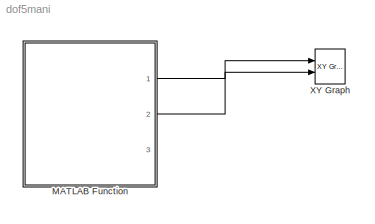
MODEL dof5mani
KIND model
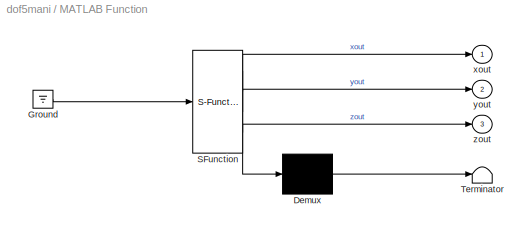
BLOCK [SubSystem] MATLAB Function
  ErrorFcn = Stateflow.Translate.translate
  FunctionWithSeparateData = off
  MaskDescription = Embedded MATLAB block
  MaskDisplay = bgColor = Simulink.Root.ColorString2Rgb(get_param(gcbh, 'BackgroundColor')); image(imread('private/eml_membrane_16.png','png','BackgroundColor',bgColor(1:3)),'center'); disp([10 10 'dof5']);
  MaskHideContents = off
  MaskIconFrame = on
  MaskIconOpaque = off
  MaskIconRotate = none
  MaskIconUnits = normalized
  MaskPortRotate = default
  MaskSelfModifiable = on
  MaskType = Stateflow
  MinAlgLoopOccurrences = off
  Opaque = off
  PermitHierarchicalResolution = ExplicitOnly
  Ports = [0, 3]
  PropExecContextOutsideSubsystem = off
  RTWSystemCode = Auto
  RequestExecContextInheritance = off
  SFBlockType = MATLAB Function
  SID = 1
  TreatAsAtomicUnit = on
BLOCK [Demux] MATLAB Function/ Demux 
  Outputs = 1
  Ports = [1, 1]
  SID = 1::20
BLOCK [Ground] MATLAB Function/ Ground 
  SID = 1::27
BLOCK [S-Function] MATLAB Function/ SFunction 
  EnableBusSupport = on
  FunctionName = sf_sfun
  PortCounts = [1 4]
  Ports = [1, 4]
  SID = 1::19
  Tag = Stateflow S-Function dof5mani 2
BLOCK [Terminator] MATLAB Function/ Terminator 
  SID = 1::22
BLOCK [Outport] MATLAB Function/xout
  IconDisplay = Port number
  SID = 1::5
BLOCK [Outport] MATLAB Function/yout
  IconDisplay = Port number
  Port = 2
  SID = 1::28
BLOCK [Outport] MATLAB Function/zout
  IconDisplay = Port number
  Port = 3
  SID = 1::29
BLOCK [Reference] XY Graph  REF=simulink/Sinks/XY Graph
  Ports = [2]
  SID = 5
  SourceBlock = simulink/Sinks/XY Graph
  SourceType = XY scope.
  st = -1
  xmax = 100
  xmin = -100
  ymax = 100
  ymin = -100
LINE MATLAB Function/ Demux :1 -> MATLAB Function/ Terminator :1
LINE MATLAB Function/ Ground :1 -> MATLAB Function/ SFunction :1
LINE MATLAB Function/ SFunction :1 -> MATLAB Function/ Demux :1
LINE MATLAB Function/ SFunction :2 -> MATLAB Function/xout:1
LINE MATLAB Function/ SFunction :3 -> MATLAB Function/yout:1
LINE MATLAB Function/ SFunction :4 -> MATLAB Function/zout:1
LINE MATLAB Function:1 -> XY Graph:1
LINE MATLAB Function:2 -> XY Graph:2
CHART MATLAB Function states=1 transitions=1
  STATE_LABEL 'eML_blk_kernel()'
